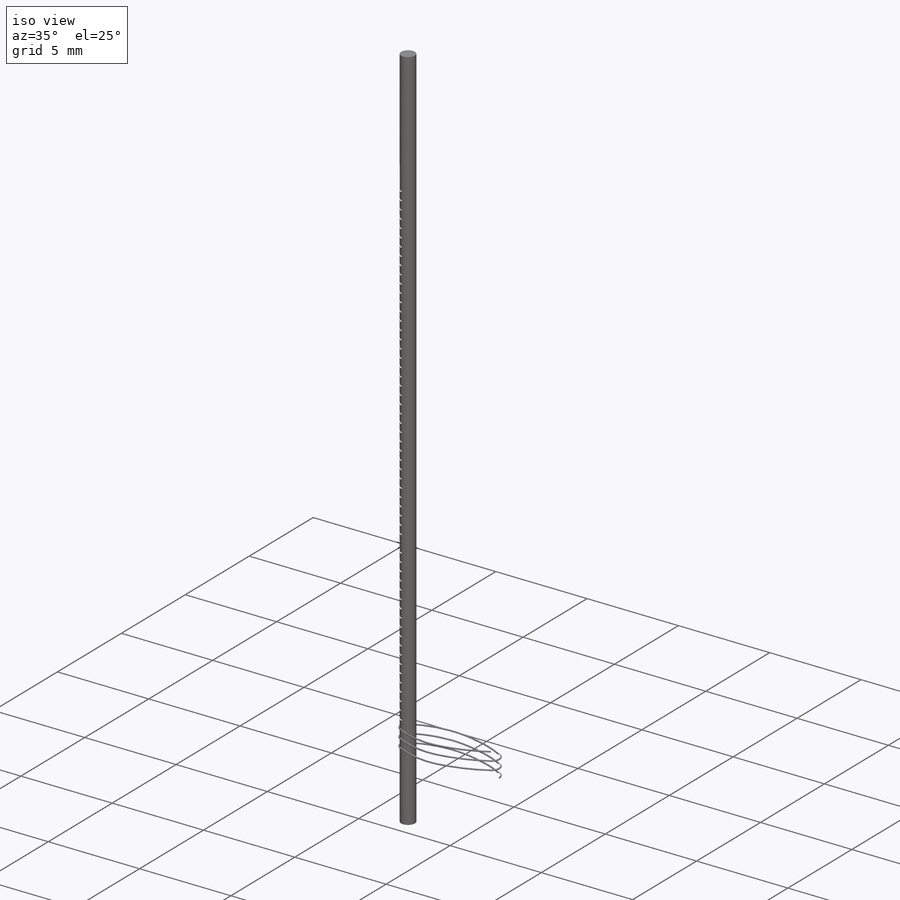
[diagram: iso view]
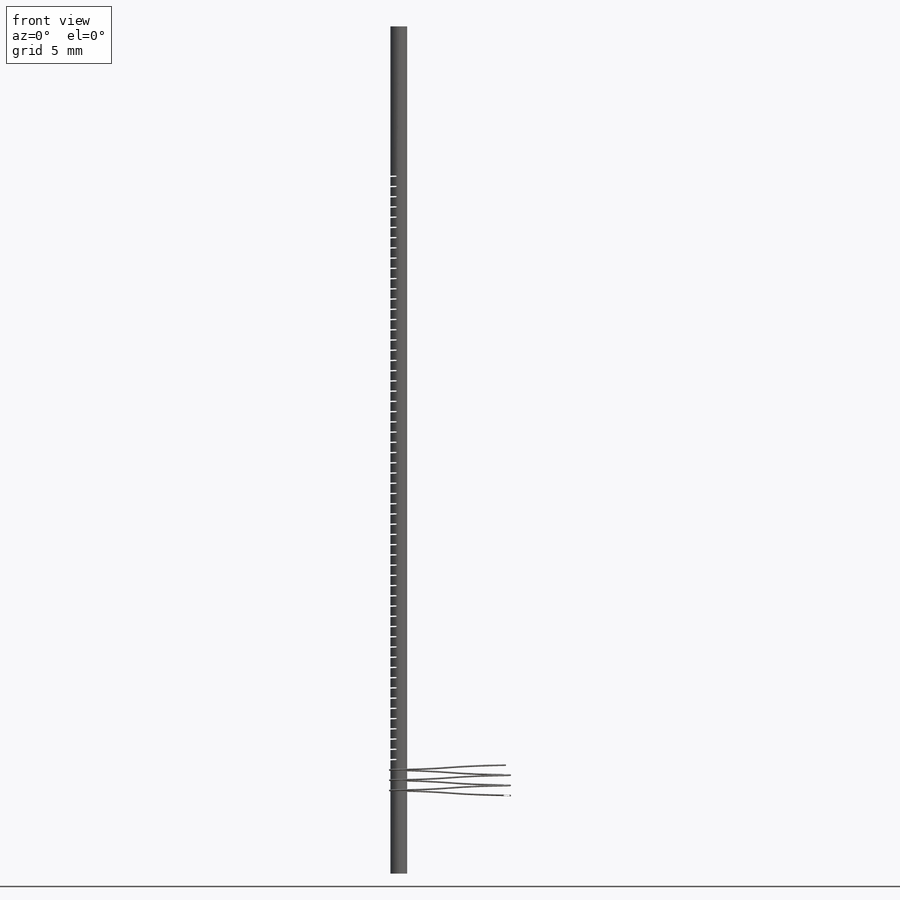
[diagram: front view]
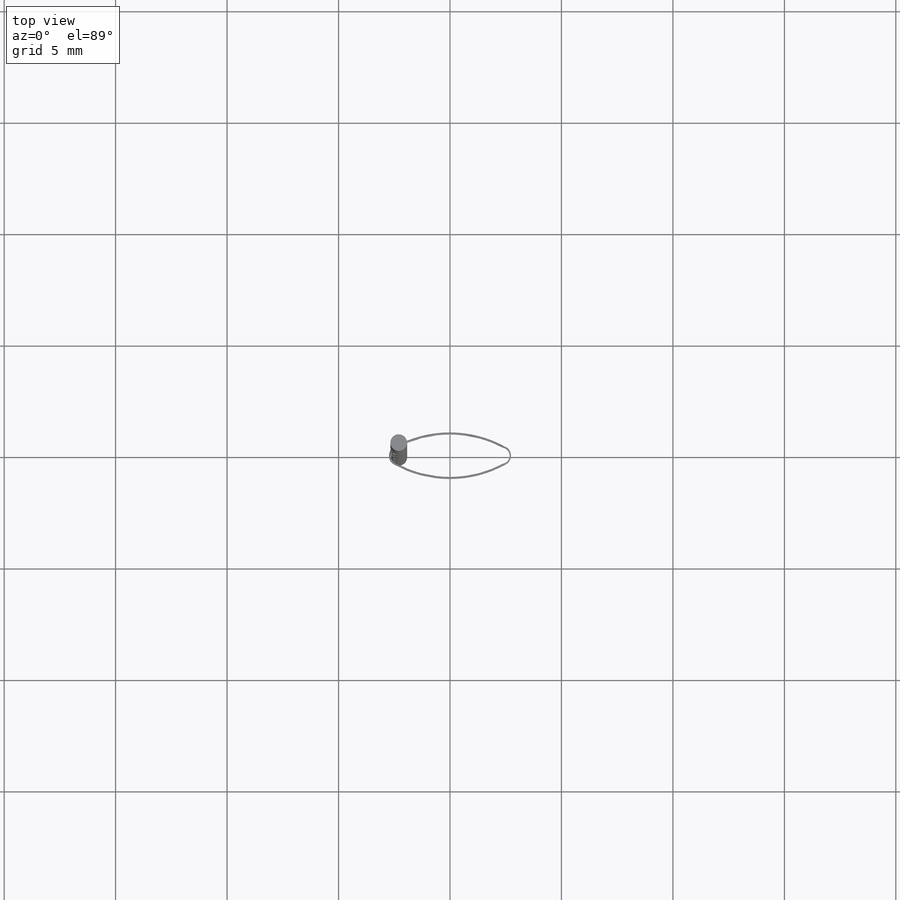
[diagram: top view]
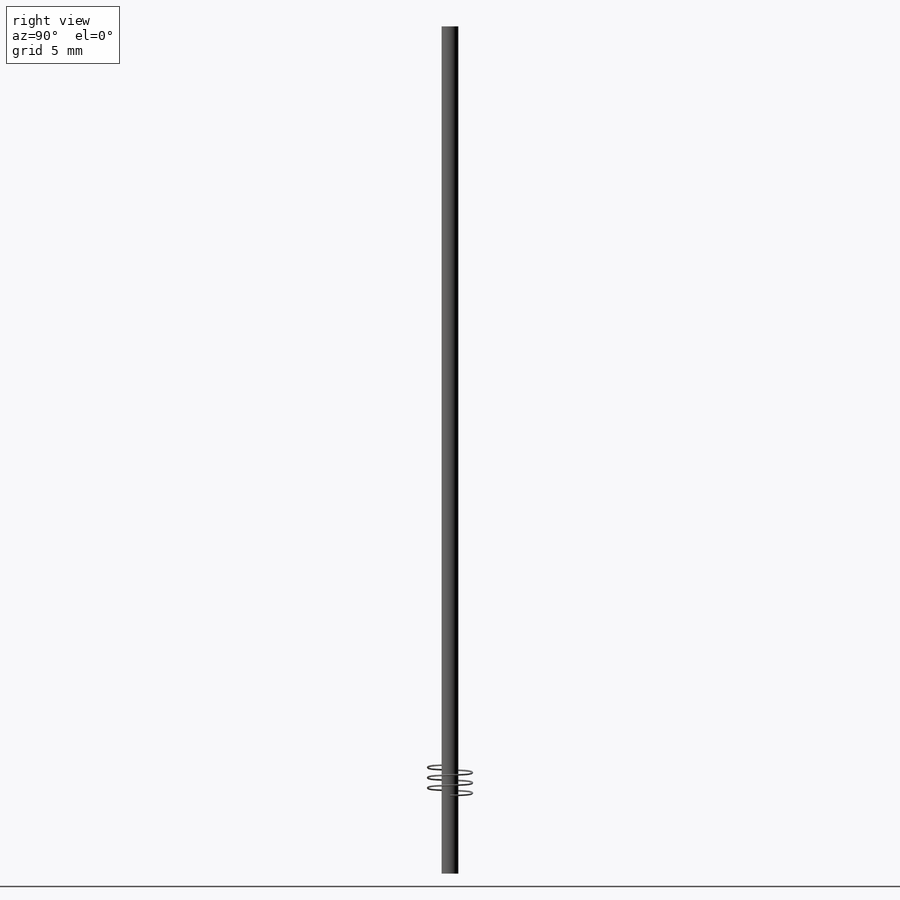
[diagram: right view]
SOLIDWORKS PART (.sldprt)
format: sldprt  version: not decoded by parser v0  size: 8,400,384 bytes
history: native  units: mm
features: sketch x6, material x1, extrude x1, plane x1, surface_op x1, helix x1, sweep x1 (+12 scaffold rows collapsed)
feature tree (24):
  scaffold x12  (default folders/planes/origin — collapsed)
  material  "Copper"
  sketch  "Sketch1"  dims[D3=0.75mm D1=4.6mm D2=2.3mm]
  extrude  "Extrude1"  Depth=35mm
  plane  "Plane1"  Offset=0.5mm
  sketch  "Sketch2"  dims[D1=0.4mm D2=2.0mm D3=~5.893141mm]
  surface_op  "Surface-Extrude1"
  sketch  "Sketch3"  dims[D1=1.0mm]
  helix  "Helix/Spiral1"  Pitch=28mm
  sketch  "Sketch4"  dims[D1=3.0mm]
  sketch  "3DSketch1"
  sketch  "Sketch5"  dims[D1=0.075mm]
  sweep  "Sweep1"
decode coverage: 7 of 10 modeling features carry decoded parameters
note: ~ marks probable driven/reference dimensions
note: suppression state not decoded; provenance and decode notes live in map.json
